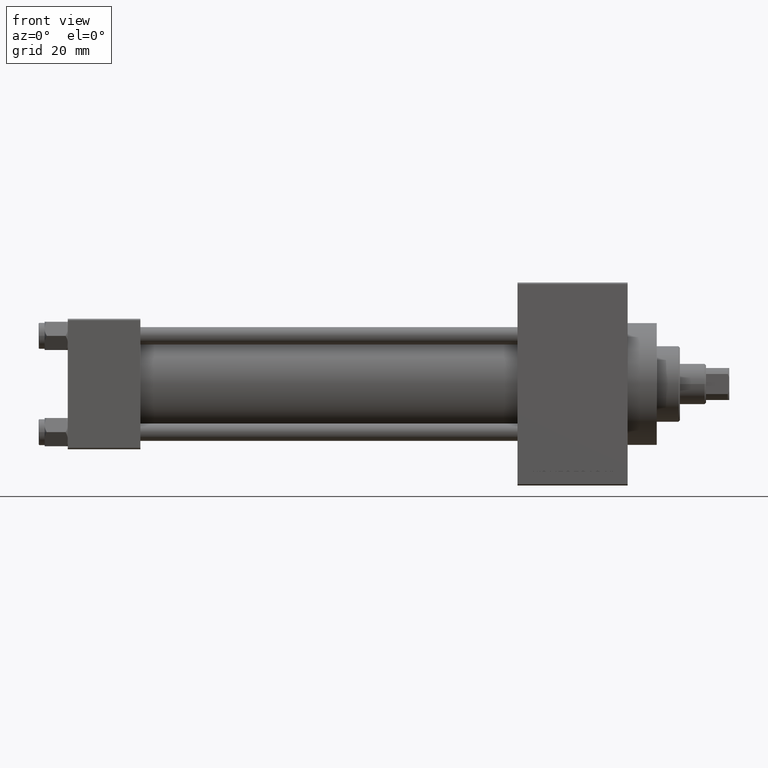
[diagram: clean part render]
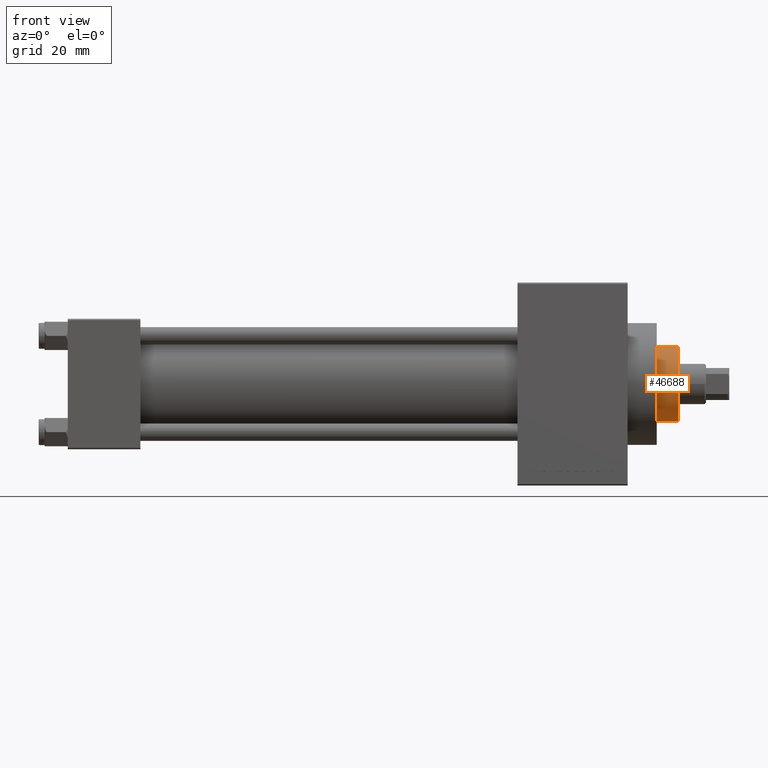
[diagram: same view with one face highlighted and labeled with its STEP entity id]
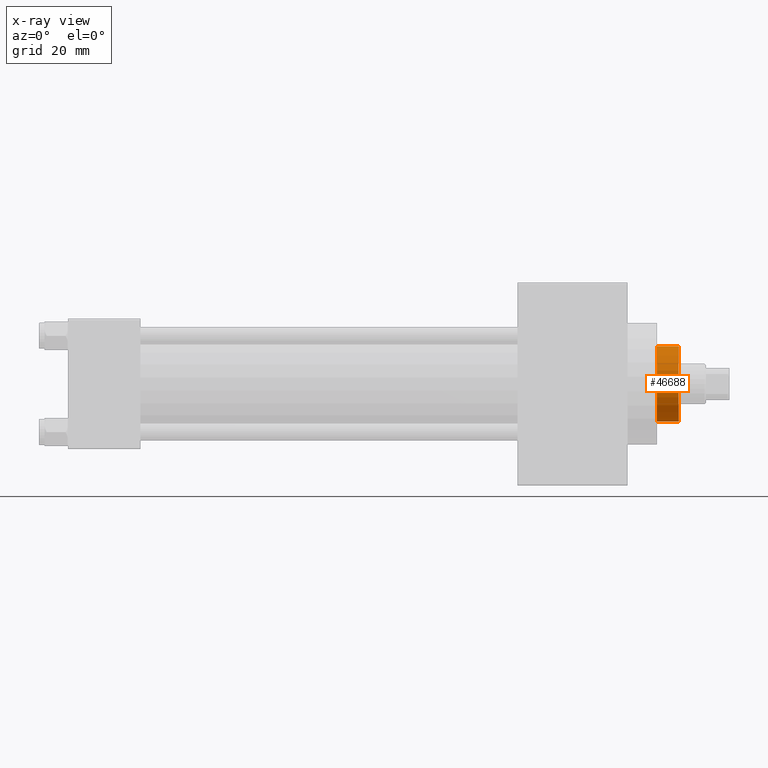
[diagram: x-ray of the same camera — body ghosted, the highlighted face saturated]
A machine part, front view. The second image highlights one B-rep face of the part: STEP entity #46688.
The next image is the same camera in x-ray: the body ghosted, the highlighted face saturated — about 0% of this face is hidden behind the body in this view.
In plain terms, the highlighted cylindrical surface (partial cylindrical patch) has radius 13 mm, axis along (-1, 0, 0).
Its self-contained STEP definition (entity closure, byte-faithful):
#536 = VECTOR ( 'NONE', #10871, 1000.000000000000000 ) ;
#1586 = DIRECTION ( 'NONE',  ( -0.000000000000000000, -0.000000000000000000, -1.000000000000000000 ) ) ;
#1713 = VERTEX_POINT ( 'NONE', #21769 ) ;
#1939 = ORIENTED_EDGE ( 'NONE', *, *, #32562, .T. ) ;
#3192 = CARTESIAN_POINT ( 'NONE',  ( 13.00000000000000178, 1.592040838891559293E-15, 50.75999999999997669 ) ) ;
#4729 = CARTESIAN_POINT ( 'NONE',  ( 0.000000000000000000, 0.000000000000000000, 50.75999999999997669 ) ) ;
#5394 = AXIS2_PLACEMENT_3D ( 'NONE', #21322, #28042, #35946 ) ;
#7216 = VERTEX_POINT ( 'NONE', #20689 ) ;
#7703 = VERTEX_POINT ( 'NONE', #3192 ) ;
#8291 = CARTESIAN_POINT ( 'NONE',  ( 0.000000000000000000, 0.000000000000000000, 51.25999999999999801 ) ) ;
#8518 = FACE_OUTER_BOUND ( 'NONE', #22300, .T. ) ;
#8699 = AXIS2_PLACEMENT_3D ( 'NONE', #4729, #17619, #38728 ) ;
#10388 = CARTESIAN_POINT ( 'NONE',  ( 13.00000000000000178, 1.592040838891559293E-15, 43.25999999999999801 ) ) ;
#10871 = DIRECTION ( 'NONE',  ( -0.000000000000000000, -0.000000000000000000, -1.000000000000000000 ) ) ;
#11007 = CARTESIAN_POINT ( 'NONE',  ( 13.00000000000000178, 1.592040838891559293E-15, 51.25999999999999801 ) ) ;
#11250 = AXIS2_PLACEMENT_3D ( 'NONE', #8291, #1586, #22904 ) ;
#11996 = ORIENTED_EDGE ( 'NONE', *, *, #36122, .T. ) ;
#13276 = CIRCLE ( 'NONE', #8699, 13.00000000000000178 ) ;
#13700 = ORIENTED_EDGE ( 'NONE', *, *, #27834, .T. ) ;
#14866 = EDGE_CURVE ( 'NONE', #7216, #1713, #36039, .T. ) ;
#14894 = ORIENTED_EDGE ( 'NONE', *, *, #14866, .F. ) ;
#17585 = CARTESIAN_POINT ( 'NONE',  ( -13.00000000000000178, 0.000000000000000000, 51.25999999999999801 ) ) ;
#17619 = DIRECTION ( 'NONE',  ( 0.000000000000000000, 0.000000000000000000, -1.000000000000000000 ) ) ;
#18454 = LINE ( 'NONE', #11007, #37649 ) ;
#20689 = CARTESIAN_POINT ( 'NONE',  ( -13.00000000000000178, 0.000000000000000000, 50.75999999999997669 ) ) ;
#21322 = CARTESIAN_POINT ( 'NONE',  ( 0.000000000000000000, 0.000000000000000000, 43.25999999999999801 ) ) ;
#21769 = CARTESIAN_POINT ( 'NONE',  ( -13.00000000000000178, 0.000000000000000000, 43.25999999999999801 ) ) ;
#22300 = EDGE_LOOP ( 'NONE', ( #11996, #1939, #13700, #14894 ) ) ;
#22904 = DIRECTION ( 'NONE',  ( -1.000000000000000000, 0.000000000000000000, 0.000000000000000000 ) ) ;
#23128 = CYLINDRICAL_SURFACE ( 'NONE', #11250, 13.00000000000000178 ) ;
#25866 = DIRECTION ( 'NONE',  ( -0.000000000000000000, -0.000000000000000000, -1.000000000000000000 ) ) ;
#26050 = CIRCLE ( 'NONE', #5394, 13.00000000000000178 ) ;
#27834 = EDGE_CURVE ( 'NONE', #42160, #1713, #26050, .T. ) ;
#28042 = DIRECTION ( 'NONE',  ( 0.000000000000000000, 0.000000000000000000, 1.000000000000000000 ) ) ;
#32562 = EDGE_CURVE ( 'NONE', #7703, #42160, #18454, .T. ) ;
#35946 = DIRECTION ( 'NONE',  ( 1.000000000000000000, 0.000000000000000000, 0.000000000000000000 ) ) ;
#36039 = LINE ( 'NONE', #17585, #536 ) ;
#36122 = EDGE_CURVE ( 'NONE', #7216, #7703, #13276, .T. ) ;
#37649 = VECTOR ( 'NONE', #25866, 1000.000000000000000 ) ;
#38728 = DIRECTION ( 'NONE',  ( 1.000000000000000000, 0.000000000000000000, 0.000000000000000000 ) ) ;
#42160 = VERTEX_POINT ( 'NONE', #10388 ) ;
#46688 = ADVANCED_FACE ( 'NONE', ( #8518 ), #23128, .T. ) ;